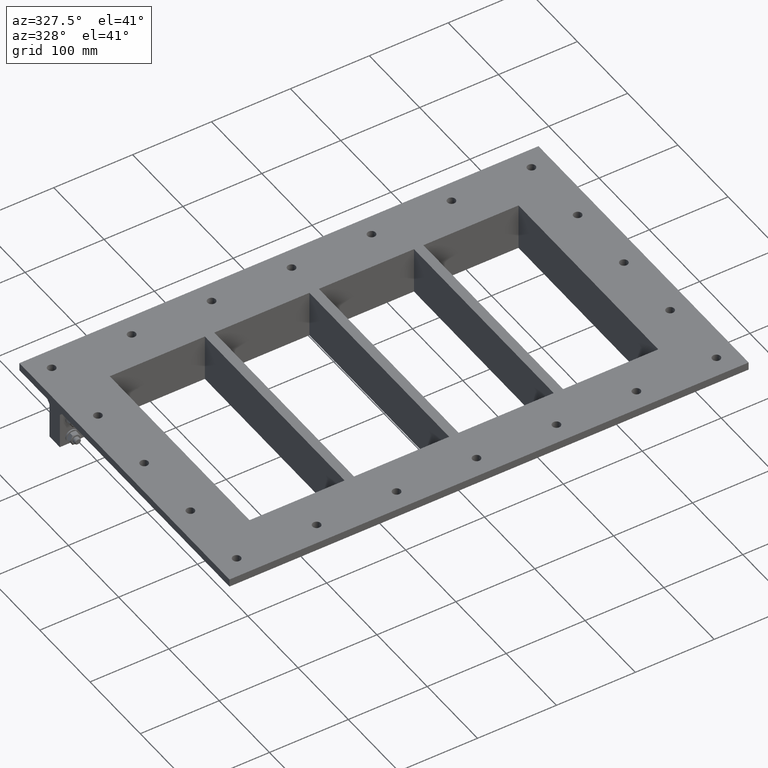
[diagram: clean part render]
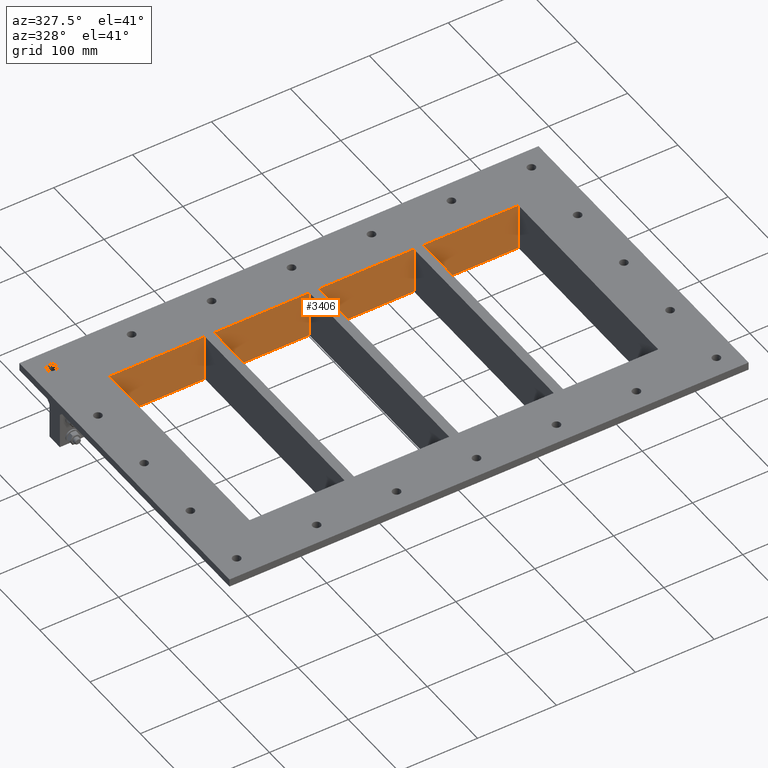
[diagram: same view with one face highlighted and labeled with its STEP entity id]
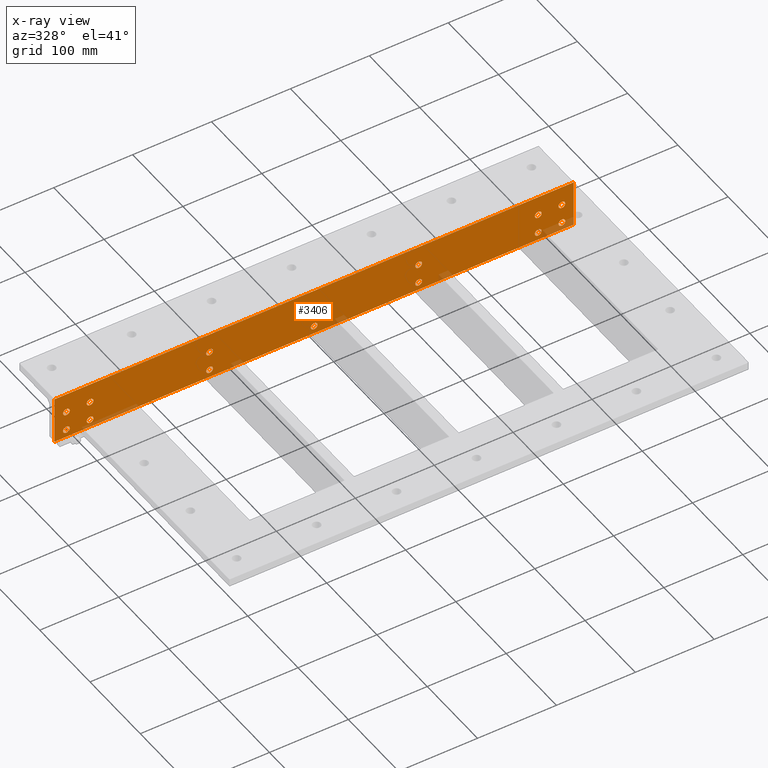
[diagram: x-ray of the same camera — body ghosted, the highlighted face saturated]
A machine part, auxiliary view. The second image highlights one B-rep face of the part: STEP entity #3406.
The next image is the same camera in x-ray: the body ghosted, the highlighted face saturated — about 3% of this face is hidden behind the body in this view.
In plain terms, the highlighted planar face has unit normal (-0, 1, 0).
Its self-contained STEP definition (entity closure, byte-faithful):
#342=FACE_BOUND('',#916,.T.);
#343=FACE_BOUND('',#917,.T.);
#344=FACE_BOUND('',#918,.T.);
#345=FACE_BOUND('',#919,.T.);
#346=FACE_BOUND('',#920,.T.);
#347=FACE_BOUND('',#921,.T.);
#348=FACE_BOUND('',#922,.T.);
#349=FACE_BOUND('',#923,.T.);
#350=FACE_BOUND('',#924,.T.);
#351=FACE_BOUND('',#925,.T.);
#352=FACE_BOUND('',#926,.T.);
#353=FACE_BOUND('',#927,.T.);
#354=FACE_BOUND('',#928,.T.);
#355=FACE_BOUND('',#929,.T.);
#461=CIRCLE('',#3852,4.25);
#462=CIRCLE('',#3854,4.25);
#463=CIRCLE('',#3856,4.25);
#464=CIRCLE('',#3858,4.25);
#465=CIRCLE('',#3860,4.25);
#466=CIRCLE('',#3862,4.25);
#467=CIRCLE('',#3864,4.25);
#468=CIRCLE('',#3866,4.25);
#469=CIRCLE('',#3868,4.25);
#470=CIRCLE('',#3870,4.25);
#471=CIRCLE('',#3872,4.25);
#472=CIRCLE('',#3874,4.25);
#473=CIRCLE('',#3876,4.25);
#474=CIRCLE('',#3878,4.25);
#665=FACE_OUTER_BOUND('',#915,.T.);
#915=EDGE_LOOP('',(#2822,#2823,#2824,#2825));
#916=EDGE_LOOP('',(#2826));
#917=EDGE_LOOP('',(#2827));
#918=EDGE_LOOP('',(#2828));
#919=EDGE_LOOP('',(#2829));
#920=EDGE_LOOP('',(#2830));
#921=EDGE_LOOP('',(#2831));
#922=EDGE_LOOP('',(#2832));
#923=EDGE_LOOP('',(#2833));
#924=EDGE_LOOP('',(#2834));
#925=EDGE_LOOP('',(#2835));
#926=EDGE_LOOP('',(#2836));
#927=EDGE_LOOP('',(#2837));
#928=EDGE_LOOP('',(#2838));
#929=EDGE_LOOP('',(#2839));
#1207=LINE('',#5608,#1468);
#1218=LINE('',#5645,#1479);
#1220=LINE('',#5648,#1481);
#1221=LINE('',#5649,#1482);
#1468=VECTOR('',#4605,10.);
#1479=VECTOR('',#4648,10.);
#1481=VECTOR('',#4652,10.);
#1482=VECTOR('',#4653,10.);
#1714=VERTEX_POINT('',#5526);
#1715=VERTEX_POINT('',#5530);
#1716=VERTEX_POINT('',#5534);
#1717=VERTEX_POINT('',#5538);
#1718=VERTEX_POINT('',#5542);
#1719=VERTEX_POINT('',#5546);
#1720=VERTEX_POINT('',#5550);
#1721=VERTEX_POINT('',#5554);
#1722=VERTEX_POINT('',#5558);
#1723=VERTEX_POINT('',#5562);
#1724=VERTEX_POINT('',#5566);
#1725=VERTEX_POINT('',#5570);
#1726=VERTEX_POINT('',#5574);
#1727=VERTEX_POINT('',#5578);
#1738=VERTEX_POINT('',#5603);
#1739=VERTEX_POINT('',#5606);
#1748=VERTEX_POINT('',#5642);
#1749=VERTEX_POINT('',#5644);
#2072=EDGE_CURVE('',#1714,#1714,#461,.T.);
#2074=EDGE_CURVE('',#1715,#1715,#462,.T.);
#2076=EDGE_CURVE('',#1716,#1716,#463,.T.);
#2078=EDGE_CURVE('',#1717,#1717,#464,.T.);
#2080=EDGE_CURVE('',#1718,#1718,#465,.T.);
#2082=EDGE_CURVE('',#1719,#1719,#466,.T.);
#2084=EDGE_CURVE('',#1720,#1720,#467,.T.);
#2086=EDGE_CURVE('',#1721,#1721,#468,.T.);
#2088=EDGE_CURVE('',#1722,#1722,#469,.T.);
#2090=EDGE_CURVE('',#1723,#1723,#470,.T.);
#2092=EDGE_CURVE('',#1724,#1724,#471,.T.);
#2094=EDGE_CURVE('',#1725,#1725,#472,.T.);
#2096=EDGE_CURVE('',#1726,#1726,#473,.T.);
#2098=EDGE_CURVE('',#1727,#1727,#474,.T.);
#2113=EDGE_CURVE('',#1739,#1738,#1207,.T.);
#2131=EDGE_CURVE('',#1748,#1749,#1218,.T.);
#2133=EDGE_CURVE('',#1749,#1739,#1220,.T.);
#2134=EDGE_CURVE('',#1738,#1748,#1221,.T.);
#2822=ORIENTED_EDGE('',*,*,#2133,.F.);
#2823=ORIENTED_EDGE('',*,*,#2131,.F.);
#2824=ORIENTED_EDGE('',*,*,#2134,.F.);
#2825=ORIENTED_EDGE('',*,*,#2113,.F.);
#2826=ORIENTED_EDGE('',*,*,#2072,.T.);
#2827=ORIENTED_EDGE('',*,*,#2074,.T.);
#2828=ORIENTED_EDGE('',*,*,#2076,.T.);
#2829=ORIENTED_EDGE('',*,*,#2078,.T.);
#2830=ORIENTED_EDGE('',*,*,#2080,.T.);
#2831=ORIENTED_EDGE('',*,*,#2082,.T.);
#2832=ORIENTED_EDGE('',*,*,#2084,.T.);
#2833=ORIENTED_EDGE('',*,*,#2086,.T.);
#2834=ORIENTED_EDGE('',*,*,#2088,.T.);
#2835=ORIENTED_EDGE('',*,*,#2090,.T.);
#2836=ORIENTED_EDGE('',*,*,#2092,.T.);
#2837=ORIENTED_EDGE('',*,*,#2094,.T.);
#2838=ORIENTED_EDGE('',*,*,#2096,.T.);
#2839=ORIENTED_EDGE('',*,*,#2098,.T.);
#3258=PLANE('',#3904);
#3406=ADVANCED_FACE('',(#665,#342,#343,#344,#345,#346,#347,#348,#349,#350,
#351,#352,#353,#354,#355),#3258,.F.);
#3852=AXIS2_PLACEMENT_3D('',#5527,#4513,#4514);
#3854=AXIS2_PLACEMENT_3D('',#5531,#4518,#4519);
#3856=AXIS2_PLACEMENT_3D('',#5535,#4523,#4524);
#3858=AXIS2_PLACEMENT_3D('',#5539,#4528,#4529);
#3860=AXIS2_PLACEMENT_3D('',#5543,#4533,#4534);
#3862=AXIS2_PLACEMENT_3D('',#5547,#4538,#4539);
#3864=AXIS2_PLACEMENT_3D('',#5551,#4543,#4544);
#3866=AXIS2_PLACEMENT_3D('',#5555,#4548,#4549);
#3868=AXIS2_PLACEMENT_3D('',#5559,#4553,#4554);
#3870=AXIS2_PLACEMENT_3D('',#5563,#4558,#4559);
#3872=AXIS2_PLACEMENT_3D('',#5567,#4563,#4564);
#3874=AXIS2_PLACEMENT_3D('',#5571,#4568,#4569);
#3876=AXIS2_PLACEMENT_3D('',#5575,#4573,#4574);
#3878=AXIS2_PLACEMENT_3D('',#5579,#4578,#4579);
#3904=AXIS2_PLACEMENT_3D('',#5647,#4650,#4651);
#4513=DIRECTION('center_axis',(-1.47415505344419E-16,1.,0.));
#4514=DIRECTION('ref_axis',(-1.,0.,0.));
#4518=DIRECTION('center_axis',(-1.47415505344419E-16,1.,0.));
#4519=DIRECTION('ref_axis',(-1.,0.,0.));
#4523=DIRECTION('center_axis',(-1.47415505344419E-16,1.,0.));
#4524=DIRECTION('ref_axis',(-1.,0.,0.));
#4528=DIRECTION('center_axis',(-1.47415505344419E-16,1.,0.));
#4529=DIRECTION('ref_axis',(-1.,0.,0.));
#4533=DIRECTION('center_axis',(-1.47415505344419E-16,1.,0.));
#4534=DIRECTION('ref_axis',(-1.,0.,0.));
#4538=DIRECTION('center_axis',(-1.47415505344419E-16,1.,0.));
#4539=DIRECTION('ref_axis',(-1.,0.,0.));
#4543=DIRECTION('center_axis',(-1.47415505344419E-16,1.,0.));
#4544=DIRECTION('ref_axis',(-1.,0.,0.));
#4548=DIRECTION('center_axis',(-1.47415505344419E-16,1.,0.));
#4549=DIRECTION('ref_axis',(-1.,0.,0.));
#4553=DIRECTION('center_axis',(-1.47415505344419E-16,1.,0.));
#4554=DIRECTION('ref_axis',(-1.,0.,0.));
#4558=DIRECTION('center_axis',(-1.47415505344419E-16,1.,0.));
#4559=DIRECTION('ref_axis',(-1.,0.,0.));
#4563=DIRECTION('center_axis',(-1.47415505344419E-16,1.,0.));
#4564=DIRECTION('ref_axis',(-1.,0.,0.));
#4568=DIRECTION('center_axis',(-1.47415505344419E-16,1.,0.));
#4569=DIRECTION('ref_axis',(-1.,0.,0.));
#4573=DIRECTION('center_axis',(-1.47415505344419E-16,1.,0.));
#4574=DIRECTION('ref_axis',(-1.,0.,0.));
#4578=DIRECTION('center_axis',(-1.47415505344419E-16,1.,0.));
#4579=DIRECTION('ref_axis',(-1.,0.,0.));
#4605=DIRECTION('',(0.,0.,1.));
#4648=DIRECTION('',(0.,0.,-1.));
#4650=DIRECTION('center_axis',(-1.47415505344419E-16,1.,0.));
#4651=DIRECTION('ref_axis',(1.,1.47415505344419E-16,0.));
#4652=DIRECTION('',(-1.,0.,0.));
#4653=DIRECTION('',(1.,0.,0.));
#5526=CARTESIAN_POINT('',(-128.25,139.,-25.));
#5527=CARTESIAN_POINT('Origin',(-132.5,139.,-25.));
#5530=CARTESIAN_POINT('',(-128.25,139.,-50.));
#5531=CARTESIAN_POINT('Origin',(-132.5,139.,-50.));
#5534=CARTESIAN_POINT('',(4.25000000000002,139.,-25.));
#5535=CARTESIAN_POINT('Origin',(1.77635683940025E-14,139.,-25.));
#5538=CARTESIAN_POINT('',(4.25000000000002,139.,-50.));
#5539=CARTESIAN_POINT('Origin',(1.77635683940025E-14,139.,-50.));
#5542=CARTESIAN_POINT('',(136.75,139.,-25.));
#5543=CARTESIAN_POINT('Origin',(132.5,139.,-25.));
#5546=CARTESIAN_POINT('',(136.75,139.,-50.));
#5547=CARTESIAN_POINT('Origin',(132.5,139.,-50.));
#5550=CARTESIAN_POINT('',(-309.75,139.,-25.));
#5551=CARTESIAN_POINT('Origin',(-314.,139.,-25.));
#5554=CARTESIAN_POINT('',(-279.75,139.,-25.));
#5555=CARTESIAN_POINT('Origin',(-284.,139.,-25.));
#5558=CARTESIAN_POINT('',(318.25,139.,-50.));
#5559=CARTESIAN_POINT('Origin',(314.,139.,-50.));
#5562=CARTESIAN_POINT('',(288.25,139.,-25.));
#5563=CARTESIAN_POINT('Origin',(284.,139.,-25.));
#5566=CARTESIAN_POINT('',(318.25,139.,-25.));
#5567=CARTESIAN_POINT('Origin',(314.,139.,-25.));
#5570=CARTESIAN_POINT('',(288.25,139.,-50.));
#5571=CARTESIAN_POINT('Origin',(284.,139.,-50.));
#5574=CARTESIAN_POINT('',(-279.75,139.,-50.));
#5575=CARTESIAN_POINT('Origin',(-284.,139.,-50.));
#5578=CARTESIAN_POINT('',(-309.75,139.,-50.));
#5579=CARTESIAN_POINT('Origin',(-314.,139.,-50.));
#5603=CARTESIAN_POINT('',(-329.,139.,0.));
#5606=CARTESIAN_POINT('',(-329.,139.,-60.));
#5608=CARTESIAN_POINT('',(-329.,139.,0.));
#5642=CARTESIAN_POINT('',(329.,139.,0.));
#5644=CARTESIAN_POINT('',(329.,139.,-60.));
#5645=CARTESIAN_POINT('',(329.,139.,0.));
#5647=CARTESIAN_POINT('Origin',(138.5,139.,0.));
#5648=CARTESIAN_POINT('',(329.,139.,-60.));
#5649=CARTESIAN_POINT('',(-164.5,139.,0.));